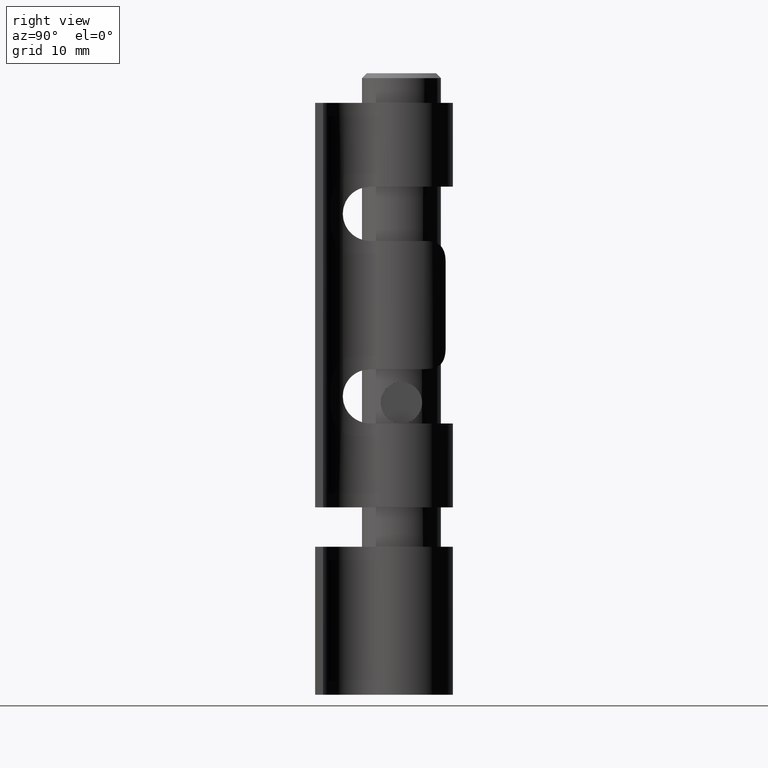
[diagram: clean part render]
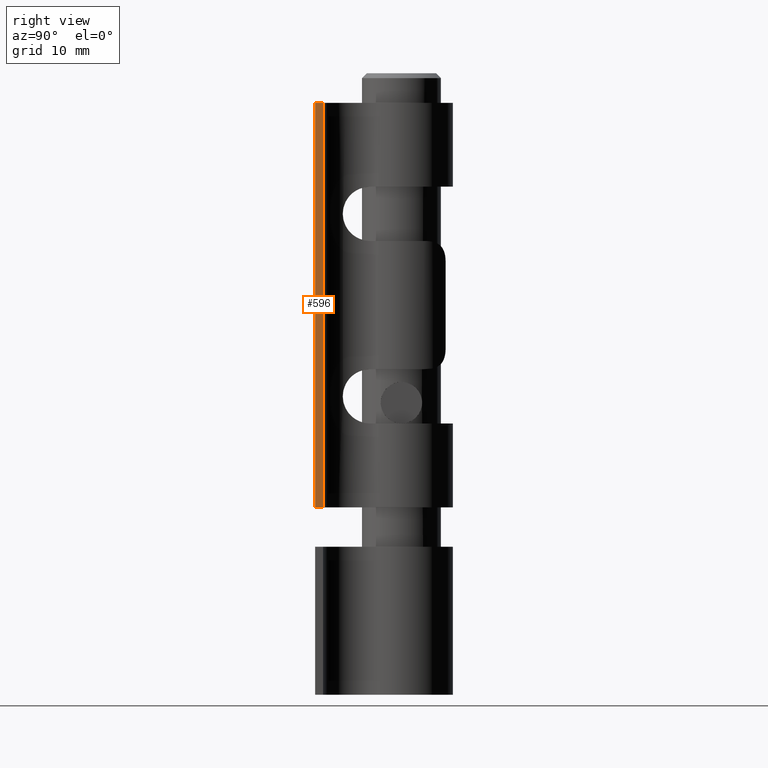
[diagram: same view with one face highlighted and labeled with its STEP entity id]
A machine part, right view. The second image highlights one B-rep face of the part: STEP entity #596.
In plain terms, the highlighted planar face has unit normal (-1, 0, 0).
Its self-contained STEP definition (entity closure, byte-faithful):
#596 = ADVANCED_FACE ( 'NONE', ( #10947 ), #11555, .F. ) ;
#1799 = CARTESIAN_POINT ( 'NONE',  ( 16.50000000000000000, 0.000000000000000000, 20.50000000000000000 ) ) ;
#1979 = CARTESIAN_POINT ( 'NONE',  ( 16.50000000000000000, 0.000000000000000000, 20.50000000000000000 ) ) ;
#2014 = VERTEX_POINT ( 'NONE', #1799 ) ;
#2389 = LINE ( 'NONE', #3361, #12043 ) ;
#3098 = LINE ( 'NONE', #9563, #8194 ) ;
#3361 = CARTESIAN_POINT ( 'NONE',  ( 16.50000000000000000, 0.8000000000000000444, 20.50000000000000000 ) ) ;
#3401 = VECTOR ( 'NONE', #14292, 1000.000000000000000 ) ;
#3561 = VECTOR ( 'NONE', #12366, 1000.000000000000000 ) ;
#4608 = EDGE_CURVE ( 'NONE', #4760, #10935, #3098, .T. ) ;
#4654 = LINE ( 'NONE', #1979, #3561 ) ;
#4760 = VERTEX_POINT ( 'NONE', #14128 ) ;
#5903 = CARTESIAN_POINT ( 'NONE',  ( 16.50000000000000000, 0.8000000000000000444, 20.50000000000000000 ) ) ;
#7013 = AXIS2_PLACEMENT_3D ( 'NONE', #5903, #12932, #11657 ) ;
#7724 = EDGE_LOOP ( 'NONE', ( #14782, #9164, #10984, #11455 ) ) ;
#7736 = CARTESIAN_POINT ( 'NONE',  ( 16.50000000000000000, 0.8000000000000000444, -20.50000000000000000 ) ) ;
#7781 = LINE ( 'NONE', #10951, #3401 ) ;
#8194 = VECTOR ( 'NONE', #9601, 1000.000000000000000 ) ;
#9164 = ORIENTED_EDGE ( 'NONE', *, *, #9521, .F. ) ;
#9521 = EDGE_CURVE ( 'NONE', #9544, #10935, #2389, .T. ) ;
#9544 = VERTEX_POINT ( 'NONE', #12715 ) ;
#9563 = CARTESIAN_POINT ( 'NONE',  ( 16.50000000000000000, 0.8000000000000000444, -20.50000000000000000 ) ) ;
#9601 = DIRECTION ( 'NONE',  ( -0.000000000000000000, 1.000000000000000000, -0.000000000000000000 ) ) ;
#10641 = EDGE_CURVE ( 'NONE', #2014, #9544, #7781, .T. ) ;
#10935 = VERTEX_POINT ( 'NONE', #7736 ) ;
#10947 = FACE_OUTER_BOUND ( 'NONE', #7724, .T. ) ;
#10951 = CARTESIAN_POINT ( 'NONE',  ( 16.50000000000000000, 0.8000000000000000444, 20.50000000000000000 ) ) ;
#10984 = ORIENTED_EDGE ( 'NONE', *, *, #10641, .F. ) ;
#11455 = ORIENTED_EDGE ( 'NONE', *, *, #13325, .T. ) ;
#11555 = PLANE ( 'NONE',  #7013 ) ;
#11653 = DIRECTION ( 'NONE',  ( -0.000000000000000000, -0.000000000000000000, -1.000000000000000000 ) ) ;
#11657 = DIRECTION ( 'NONE',  ( 0.000000000000000000, 0.000000000000000000, 1.000000000000000000 ) ) ;
#12043 = VECTOR ( 'NONE', #11653, 1000.000000000000000 ) ;
#12366 = DIRECTION ( 'NONE',  ( -0.000000000000000000, -0.000000000000000000, -1.000000000000000000 ) ) ;
#12715 = CARTESIAN_POINT ( 'NONE',  ( 16.50000000000000000, 0.8000000000000000444, 20.50000000000000000 ) ) ;
#12932 = DIRECTION ( 'NONE',  ( -1.000000000000000000, 0.000000000000000000, 0.000000000000000000 ) ) ;
#13325 = EDGE_CURVE ( 'NONE', #2014, #4760, #4654, .T. ) ;
#14128 = CARTESIAN_POINT ( 'NONE',  ( 16.50000000000000000, 0.000000000000000000, -20.50000000000000000 ) ) ;
#14292 = DIRECTION ( 'NONE',  ( -0.000000000000000000, 1.000000000000000000, -0.000000000000000000 ) ) ;
#14782 = ORIENTED_EDGE ( 'NONE', *, *, #4608, .T. ) ;